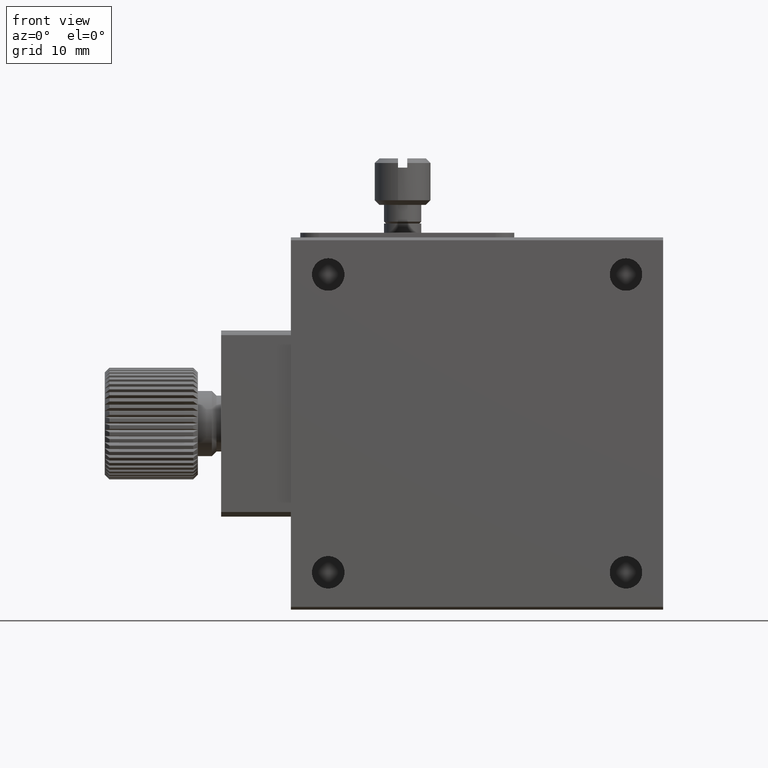
[diagram: clean part render]
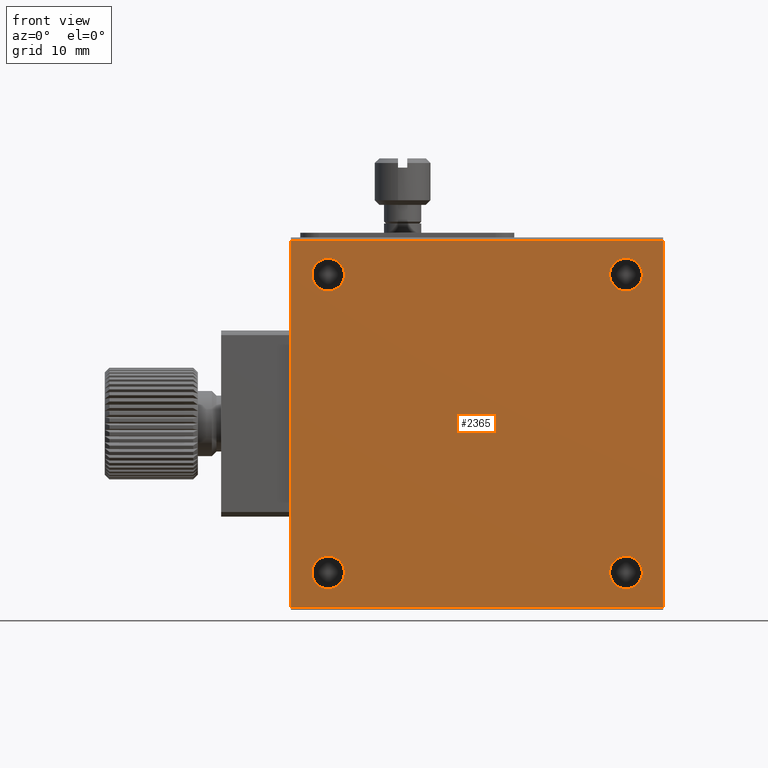
[diagram: same view with one face highlighted and labeled with its STEP entity id]
A machine part, front view. The second image highlights one B-rep face of the part: STEP entity #2365.
In plain terms, the highlighted planar face has unit normal (0, 1, 0).
Its self-contained STEP definition (entity closure, byte-faithful):
#458 = CARTESIAN_POINT ( 'NONE',  ( 40.00000000000000000, 0.000000000000000000, -0.2999999999999830025 ) ) ;
#477 = EDGE_LOOP ( 'NONE', ( #651 ) ) ;
#612 = VERTEX_POINT ( 'NONE', #936 ) ;
#651 = ORIENTED_EDGE ( 'NONE', *, *, #8491, .F. ) ;
#936 = CARTESIAN_POINT ( 'NONE',  ( 36.00000000000000711, 0.000000000000000000, -37.75000000000000711 ) ) ;
#1101 = VERTEX_POINT ( 'NONE', #5499 ) ;
#1638 = EDGE_CURVE ( 'NONE', #1101, #7274, #11831, .T. ) ;
#1828 = DIRECTION ( 'NONE',  ( 0.000000000000000000, -1.000000000000000000, 0.000000000000000000 ) ) ;
#1945 = CARTESIAN_POINT ( 'NONE',  ( 40.00000000000000000, 0.000000000000000000, -0.2999999999999830025 ) ) ;
#2365 = ADVANCED_FACE ( 'NONE', ( #12802, #7719, #9795, #2709, #6588 ), #5723, .F. ) ;
#2440 = EDGE_CURVE ( 'NONE', #7905, #7639, #7590, .T. ) ;
#2452 = DIRECTION ( 'NONE',  ( 0.000000000000000000, 0.000000000000000000, -1.000000000000000000 ) ) ;
#2538 = CARTESIAN_POINT ( 'NONE',  ( 36.00000000000000711, 0.000000000000000000, -36.00000000000000711 ) ) ;
#2571 = DIRECTION ( 'NONE',  ( 0.000000000000000000, -0.000000000000000000, 1.000000000000000000 ) ) ;
#2701 = EDGE_LOOP ( 'NONE', ( #11519, #4564, #11112, #7361 ) ) ;
#2709 = FACE_BOUND ( 'NONE', #3223, .T. ) ;
#2773 = CARTESIAN_POINT ( 'NONE',  ( 4.000000000000000000, 0.000000000000000000, -4.000000000000000000 ) ) ;
#2833 = DIRECTION ( 'NONE',  ( 0.000000000000000000, 0.000000000000000000, -1.000000000000000000 ) ) ;
#3007 = CIRCLE ( 'NONE', #13246, 1.749999999999999778 ) ;
#3223 = EDGE_LOOP ( 'NONE', ( #8438 ) ) ;
#3284 = VECTOR ( 'NONE', #2571, 1000.000000000000000 ) ;
#3586 = DIRECTION ( 'NONE',  ( 0.000000000000000000, -1.000000000000000000, 0.000000000000000000 ) ) ;
#3819 = CARTESIAN_POINT ( 'NONE',  ( 40.00000000000000000, 0.000000000000000000, -0.2999999999999830025 ) ) ;
#3934 = AXIS2_PLACEMENT_3D ( 'NONE', #2538, #8696, #9757 ) ;
#4269 = EDGE_CURVE ( 'NONE', #7274, #7905, #4832, .T. ) ;
#4479 = EDGE_CURVE ( 'NONE', #612, #612, #8202, .T. ) ;
#4554 = CARTESIAN_POINT ( 'NONE',  ( 0.000000000000000000, -5.421010862427522170E-17, -0.2999999999999829470 ) ) ;
#4564 = ORIENTED_EDGE ( 'NONE', *, *, #1638, .F. ) ;
#4593 = CARTESIAN_POINT ( 'NONE',  ( 0.000000000000000000, 0.000000000000000000, -0.2999999999999830025 ) ) ;
#4719 = EDGE_LOOP ( 'NONE', ( #7430 ) ) ;
#4783 = CARTESIAN_POINT ( 'NONE',  ( 4.000000000000000000, 0.000000000000000000, -36.00000000000000711 ) ) ;
#4832 = LINE ( 'NONE', #9964, #4994 ) ;
#4994 = VECTOR ( 'NONE', #11037, 1000.000000000000000 ) ;
#5228 = CARTESIAN_POINT ( 'NONE',  ( 4.000000000000000000, 0.000000000000000000, -37.75000000000000711 ) ) ;
#5420 = CARTESIAN_POINT ( 'NONE',  ( 4.000000000000000000, 0.000000000000000000, -5.750000000000000000 ) ) ;
#5499 = CARTESIAN_POINT ( 'NONE',  ( 40.00000000000000000, -5.421010862427522170E-17, -0.2999999999999829470 ) ) ;
#5625 = DIRECTION ( 'NONE',  ( 1.000000000000000000, 0.000000000000000000, -0.000000000000000000 ) ) ;
#5723 = PLANE ( 'NONE',  #7339 ) ;
#6055 = DIRECTION ( 'NONE',  ( 0.000000000000000000, 0.000000000000000000, -1.000000000000000000 ) ) ;
#6225 = VERTEX_POINT ( 'NONE', #5420 ) ;
#6588 = FACE_BOUND ( 'NONE', #8911, .T. ) ;
#6659 = CARTESIAN_POINT ( 'NONE',  ( 36.00000000000000711, 0.000000000000000000, -4.000000000000000000 ) ) ;
#6675 = EDGE_CURVE ( 'NONE', #12501, #12501, #10751, .T. ) ;
#6801 = AXIS2_PLACEMENT_3D ( 'NONE', #2773, #11862, #6055 ) ;
#7006 = VERTEX_POINT ( 'NONE', #9941 ) ;
#7274 = VERTEX_POINT ( 'NONE', #9109 ) ;
#7339 = AXIS2_PLACEMENT_3D ( 'NONE', #1945, #10657, #9669 ) ;
#7361 = ORIENTED_EDGE ( 'NONE', *, *, #2440, .F. ) ;
#7430 = ORIENTED_EDGE ( 'NONE', *, *, #6675, .F. ) ;
#7562 = LINE ( 'NONE', #458, #12884 ) ;
#7590 = LINE ( 'NONE', #4593, #3284 ) ;
#7639 = VERTEX_POINT ( 'NONE', #4554 ) ;
#7719 = FACE_BOUND ( 'NONE', #477, .T. ) ;
#7897 = DIRECTION ( 'NONE',  ( -0.000000000000000000, 0.000000000000000000, -1.000000000000000000 ) ) ;
#7905 = VERTEX_POINT ( 'NONE', #8546 ) ;
#7977 = VECTOR ( 'NONE', #7897, 1000.000000000000000 ) ;
#8202 = CIRCLE ( 'NONE', #3934, 1.750000000000001554 ) ;
#8438 = ORIENTED_EDGE ( 'NONE', *, *, #4479, .F. ) ;
#8491 = EDGE_CURVE ( 'NONE', #6225, #6225, #12987, .T. ) ;
#8546 = CARTESIAN_POINT ( 'NONE',  ( 0.000000000000000000, -4.336808689942018722E-16, -39.69999999999999574 ) ) ;
#8696 = DIRECTION ( 'NONE',  ( 0.000000000000000000, -1.000000000000000000, 0.000000000000000000 ) ) ;
#8911 = EDGE_LOOP ( 'NONE', ( #9148 ) ) ;
#9109 = CARTESIAN_POINT ( 'NONE',  ( 40.00000000000000000, -8.673617379884037444E-16, -39.69999999999999574 ) ) ;
#9148 = ORIENTED_EDGE ( 'NONE', *, *, #12901, .F. ) ;
#9669 = DIRECTION ( 'NONE',  ( 0.000000000000000000, -0.000000000000000000, 1.000000000000000000 ) ) ;
#9757 = DIRECTION ( 'NONE',  ( 0.000000000000000000, 0.000000000000000000, -1.000000000000000000 ) ) ;
#9795 = FACE_BOUND ( 'NONE', #4719, .T. ) ;
#9941 = CARTESIAN_POINT ( 'NONE',  ( 36.00000000000000711, 0.000000000000000000, -5.750000000000000000 ) ) ;
#9964 = CARTESIAN_POINT ( 'NONE',  ( 40.00000000000000000, 0.000000000000000000, -39.70000000000000284 ) ) ;
#10267 = EDGE_CURVE ( 'NONE', #7639, #1101, #7562, .T. ) ;
#10657 = DIRECTION ( 'NONE',  ( 0.000000000000000000, 1.000000000000000000, 0.000000000000000000 ) ) ;
#10751 = CIRCLE ( 'NONE', #12673, 1.750000000000001554 ) ;
#11037 = DIRECTION ( 'NONE',  ( -1.000000000000000000, -0.000000000000000000, 0.000000000000000000 ) ) ;
#11112 = ORIENTED_EDGE ( 'NONE', *, *, #10267, .F. ) ;
#11519 = ORIENTED_EDGE ( 'NONE', *, *, #4269, .F. ) ;
#11831 = LINE ( 'NONE', #3819, #7977 ) ;
#11862 = DIRECTION ( 'NONE',  ( 0.000000000000000000, -1.000000000000000000, 0.000000000000000000 ) ) ;
#12501 = VERTEX_POINT ( 'NONE', #5228 ) ;
#12673 = AXIS2_PLACEMENT_3D ( 'NONE', #4783, #1828, #2833 ) ;
#12802 = FACE_OUTER_BOUND ( 'NONE', #2701, .T. ) ;
#12884 = VECTOR ( 'NONE', #5625, 1000.000000000000000 ) ;
#12901 = EDGE_CURVE ( 'NONE', #7006, #7006, #3007, .T. ) ;
#12987 = CIRCLE ( 'NONE', #6801, 1.749999999999999778 ) ;
#13246 = AXIS2_PLACEMENT_3D ( 'NONE', #6659, #3586, #2452 ) ;